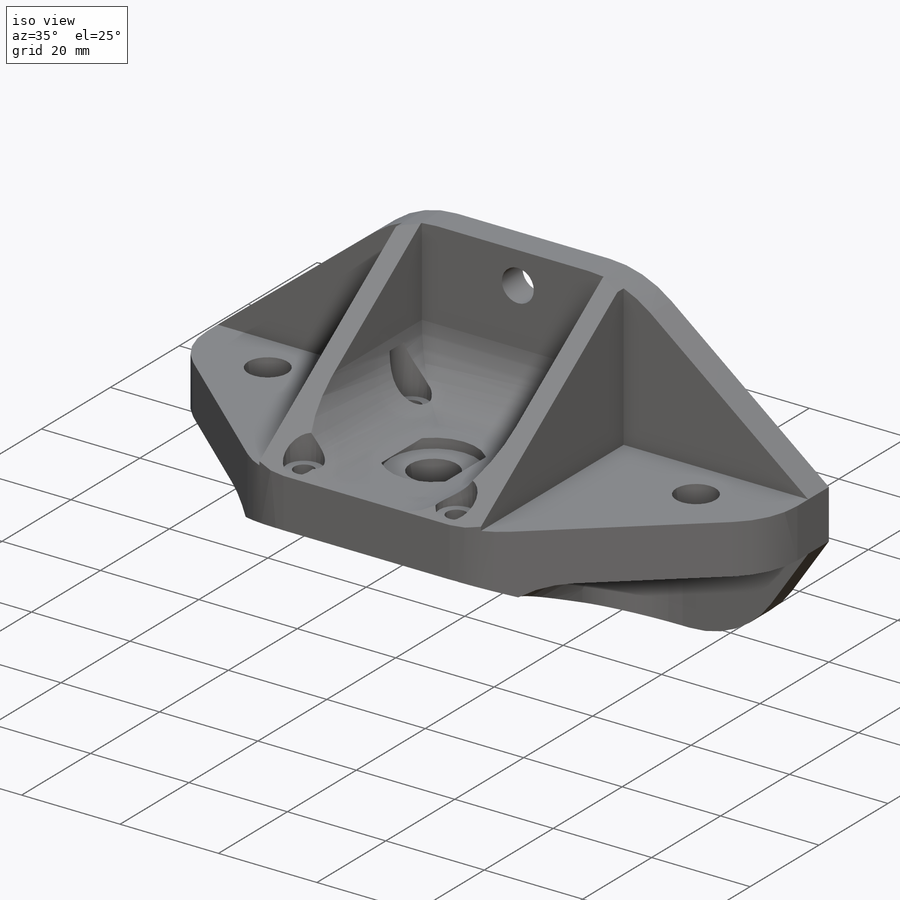
[diagram: iso view]
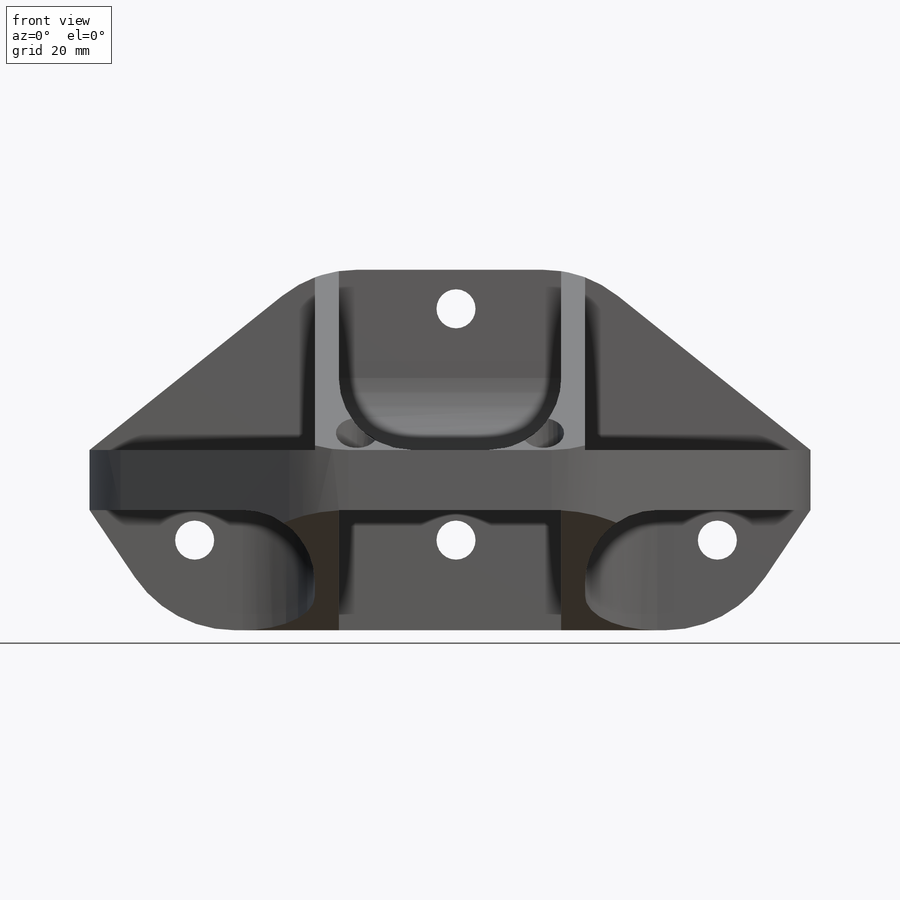
[diagram: front view]
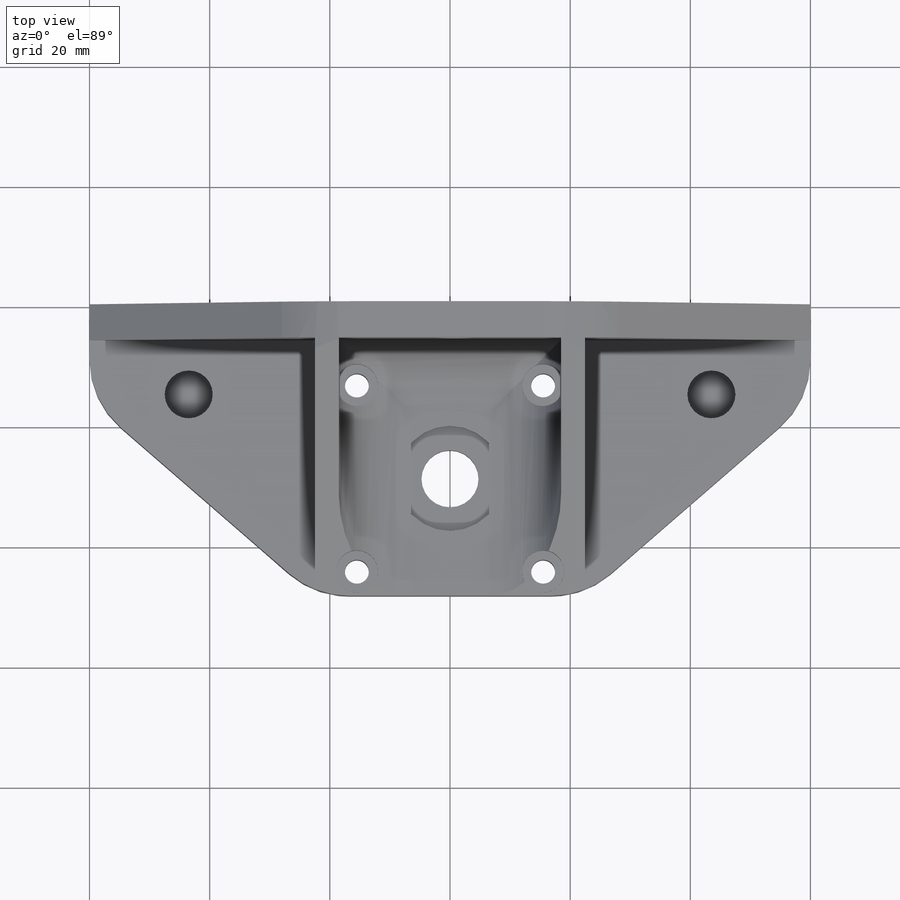
[diagram: top view]
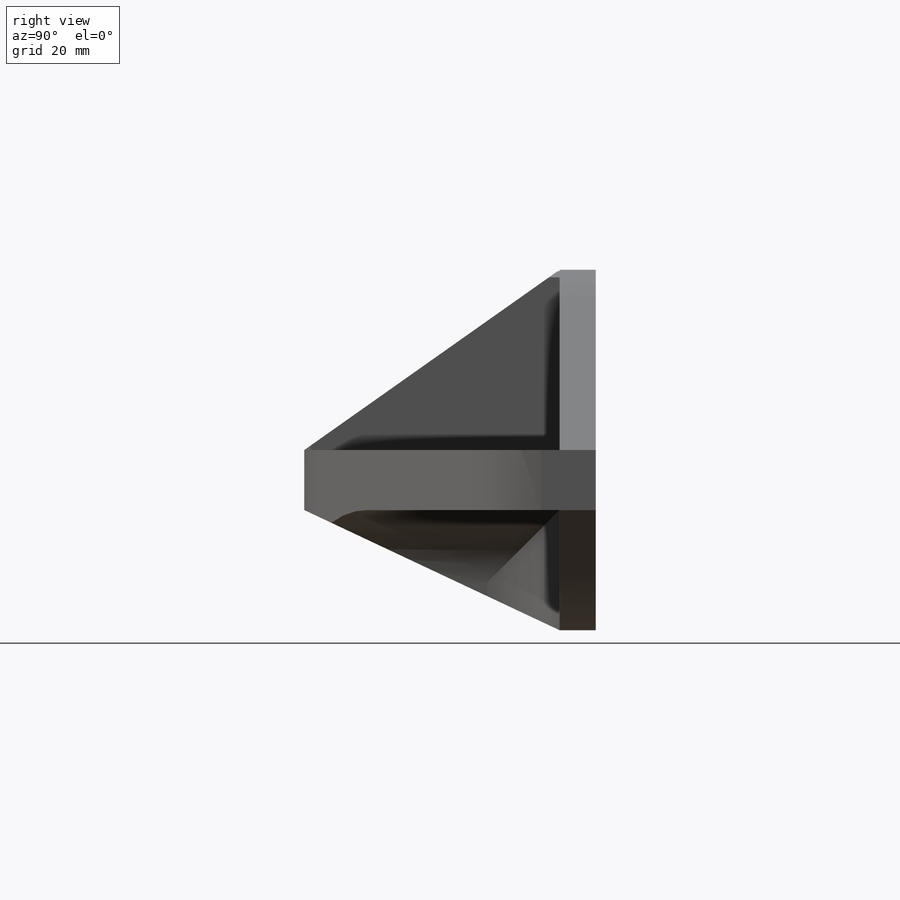
[diagram: right view]
SOLIDWORKS PART (.sldprt)
format: sldprt  version: not decoded by parser v0  size: 542,208 bytes
history: native  units: mm
features: sketch x11, cut_extrude x8, extrude x3, fillet x3, material x1 (+12 scaffold rows collapsed)
feature tree (38):
  scaffold x12  (default folders/planes/origin — collapsed)
  material  "ABS PC"
  sketch  "Sketch1"  dims[c1.D1=30.0mm c1.D2=~48.918933mm c2.D2=90.0deg c3.D2=60.0mm c3.D3=0.0mm c3.D4=22.5mm c3.D5=22.5mm c4.D5=90.0deg c5.D5=40.0mm c5.D6=30.0mm c6.D5=70.0mm c6.D2=60.0mm c6.D3=35.0mm c6.D4=22.5mm c7.D5=45.0mm c7.D3=120.0mm]
  extrude  "Boss-Extrude1"  Depth=6mm
  sketch  "Sketch5"  dims[c1.D1=6.5mm c1.D3=6.5mm c1.D2=16.5mm c2.D3=15.0mm c2.D4=43.5mm c2.D5=43.5mm c2.D6=6.5mm c3.D3=15.0mm c3.D2=23.5mm]
  cut_extrude  "Cut-Extrude2"  [1 undecoded]
  sketch  "Sketch6"  dims[D1=10.0mm D2=4.0mm]
  extrude  "Boss-Extrude2"  Depth=42.5mm
  sketch  "Sketch7"  dims[c1.D1=~8.519441mm c1.D3=9.5mm c1.D4=8.0mm c1.D5=~9.542995mm c1.D8=4.0mm c2.D1=15.0mm c2.D2=29.0mm c2.D5=43.5mm c2.D6=43.5mm c2.D7=0.0mm c2.D9=15.5mm c2.D10=15.5mm c2.D11=15.5mm c2.D12=15.5mm]
  cut_extrude  "Cut-Extrude3"  [1 undecoded]
  sketch  "Sketch8"  dims[D1=~46.970736mm]
  cut_extrude  "Cut-Extrude4"  [1 undecoded]
  sketch  "Sketch9"  dims[D1=10.0mm]
  cut_extrude  "Cut-Extrude5"  [1 undecoded]
  fillet  "Fillet1"  Radius=15mm
  fillet  "Fillet2"  Radius=12mm
  sketch  "Sketch10"  dims[D1=7.0mm]
  cut_extrude  "Cut-Extrude6"  Depth=10mm
  sketch  "Sketch11"  dims[D1=12.0mm]
  cut_extrude  "Cut-Extrude7"  [1 undecoded]
  fillet  "Fillet3"  Radius=20mm
  sketch  "Sketch12"  dims[D1=~14.548435mm]
  extrude  "Boss-Extrude3"  Depth=3.5mm
  sketch  "Sketch13"  dims[D1=17.5mm]
  cut_extrude  "Cut-Extrude8"  Depth=2mm
  sketch  "Sketch14"  dims[D1=~20.292214mm]
  cut_extrude  "Cut-Extrude9"  Depth=2mm
decode coverage: 20 of 25 modeling features carry decoded parameters
note: ~ marks probable driven/reference dimensions
note: 5 parameter values undecoded
summary: no parameter record found for 5 features
note: suppression state not decoded; provenance and decode notes live in map.json
